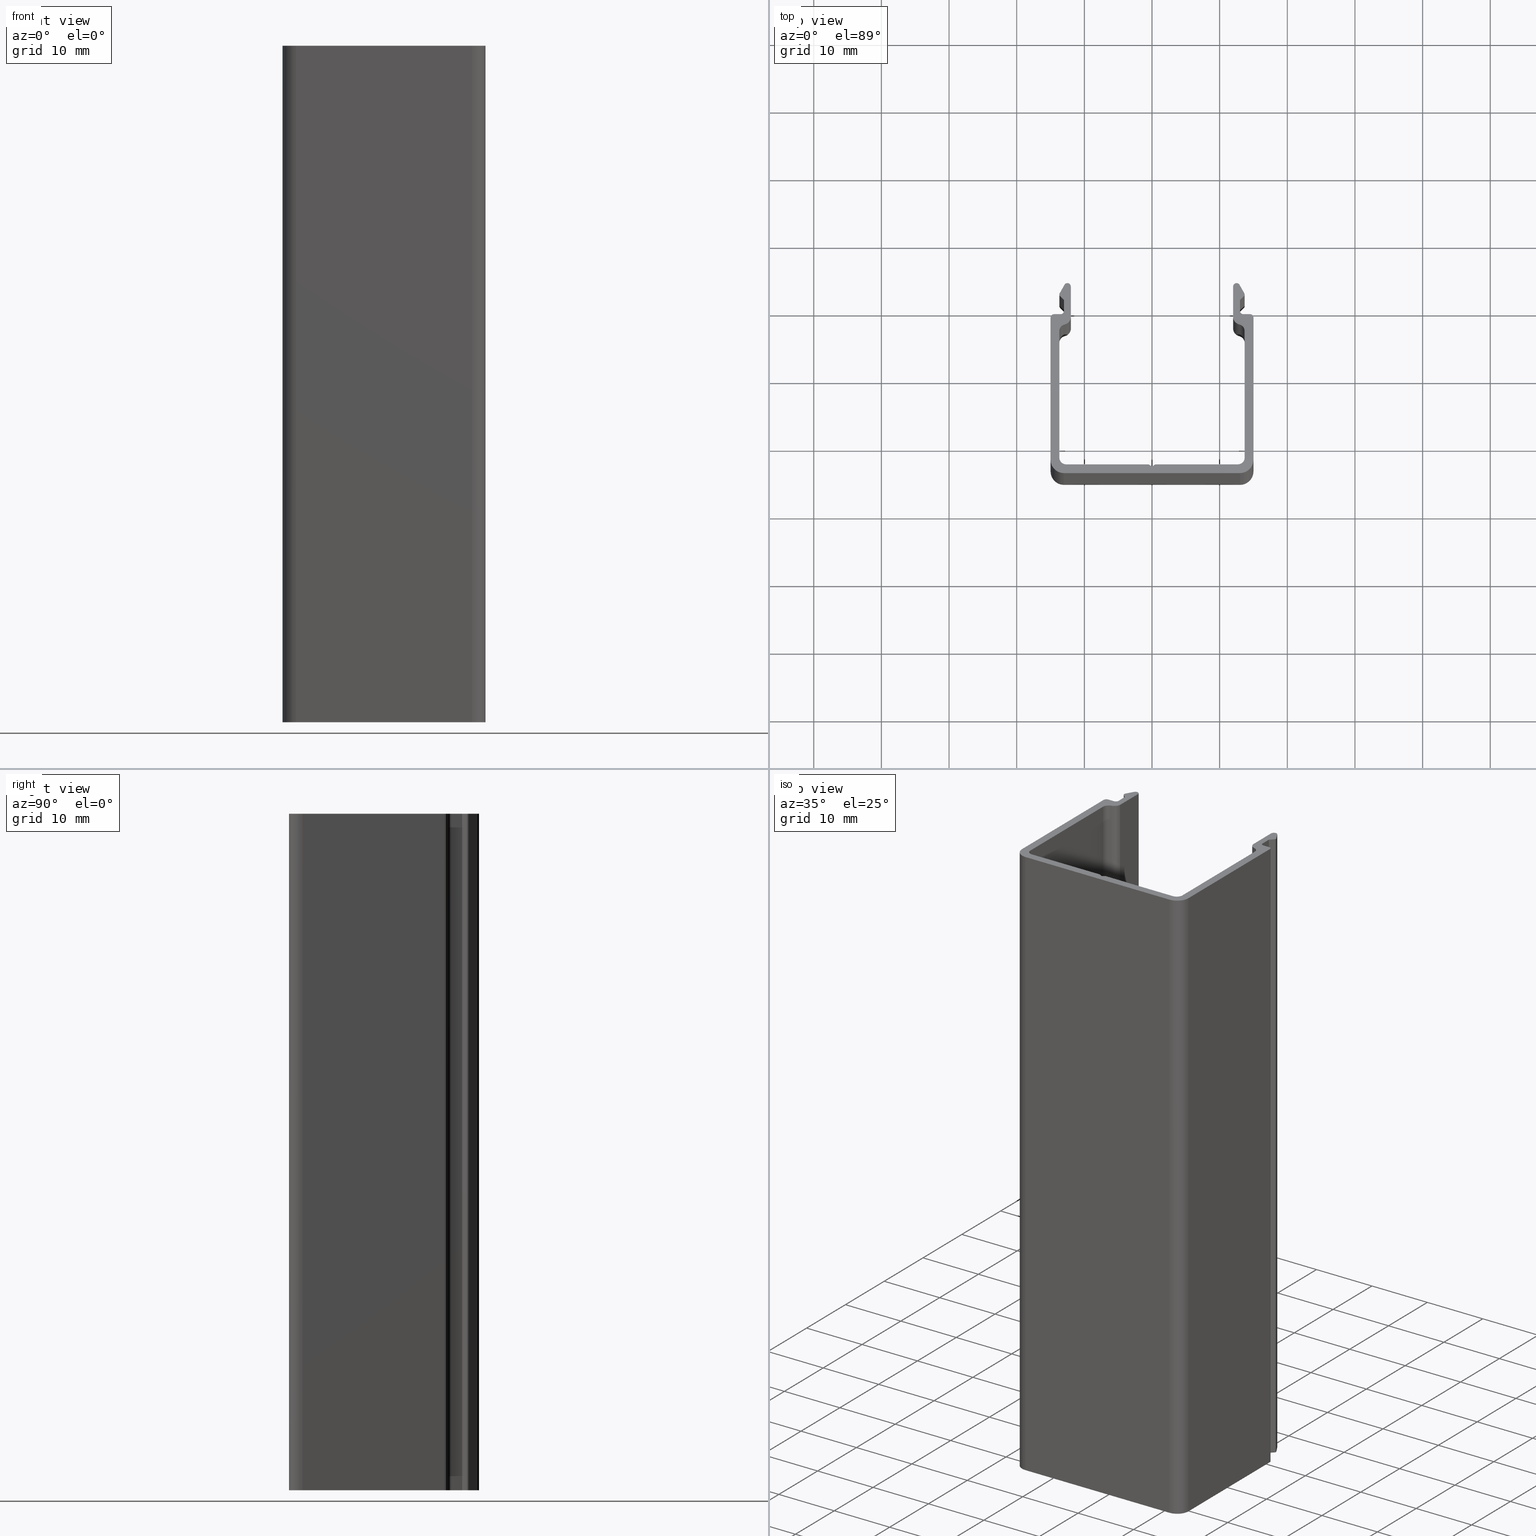
[diagram: canonical four-view strip — front | top / right | iso, engineering-drawing reading convention]
A machine part, canonical four-view strip (front | top / right | iso — engineering-drawing reading convention). The complete STEP part file that produces these views, byte-faithful:
ISO-10303-21;
HEADER;
/* Generated by software containing ST-Developer
 * from STEP Tools, Inc. (www.steptools.com) 
 */

FILE_DESCRIPTION(
/* description */ (''),
/* implementation_level */ '2;1');

FILE_NAME(
/* name */ 
'Q:\\Catalogo\\1_Profili Dierre\\Per Download Web\\Complementari\\BPRC
A0000001.stp',
/* time_stamp */ '2017-07-14T09:56:03+02:00',
/* author */ ('fzagni'),
/* organization */ (''),
/* preprocessor_version */ 'ST-DEVELOPER v16.1',
/* originating_system */ 'Autodesk Inventor 2016',
/* authorisation */ '');

FILE_SCHEMA (('AUTOMOTIVE_DESIGN { 1 0 10303 214 3 1 1 }'));
ENDSEC;

DATA;
#10=MECHANICAL_DESIGN_GEOMETRIC_PRESENTATION_REPRESENTATION('',(#13),#1226);
#11=SHAPE_REPRESENTATION_RELATIONSHIP('SRR','None',#1235,#12);
#12=ADVANCED_BREP_SHAPE_REPRESENTATION('',(#14),#1225);
#13=STYLED_ITEM('',(#1244),#14);
#14=MANIFOLD_SOLID_BREP('Solido1',#726);
#15=CIRCLE('',#730,2.);
#16=CIRCLE('',#731,2.);
#17=CIRCLE('',#734,0.500103581741702);
#18=CIRCLE('',#735,0.500103581741702);
#19=CIRCLE('',#738,0.500103581741702);
#20=CIRCLE('',#739,0.500103581741702);
#21=CIRCLE('',#743,0.300000000000276);
#22=CIRCLE('',#744,0.300000000000276);
#23=CIRCLE('',#747,0.500103581741702);
#24=CIRCLE('',#748,0.500103581741702);
#25=CIRCLE('',#751,1.20293120037158);
#26=CIRCLE('',#752,1.20293120037158);
#27=CIRCLE('',#754,1.00000000000018);
#28=CIRCLE('',#755,1.00000000000018);
#29=CIRCLE('',#758,1.00000000000018);
#30=CIRCLE('',#759,1.00000000000018);
#31=CIRCLE('',#763,2.);
#32=CIRCLE('',#764,2.);
#33=CIRCLE('',#767,0.500103581741702);
#34=CIRCLE('',#768,0.500103581741702);
#35=CIRCLE('',#771,0.500103581741702);
#36=CIRCLE('',#772,0.500103581741702);
#37=CIRCLE('',#776,0.300000000000276);
#38=CIRCLE('',#777,0.300000000000276);
#39=CIRCLE('',#780,0.500103581741702);
#40=CIRCLE('',#781,0.500103581741702);
#41=CIRCLE('',#784,1.20293120037158);
#42=CIRCLE('',#785,1.20293120037158);
#43=CIRCLE('',#787,1.00000000000018);
#44=CIRCLE('',#788,1.00000000000018);
#45=CIRCLE('',#791,1.00000000000018);
#46=CIRCLE('',#792,1.00000000000018);
#47=CYLINDRICAL_SURFACE('',#729,2.);
#48=CYLINDRICAL_SURFACE('',#733,0.500103581741702);
#49=CYLINDRICAL_SURFACE('',#737,0.500103581741702);
#50=CYLINDRICAL_SURFACE('',#742,0.300000000000276);
#51=CYLINDRICAL_SURFACE('',#746,0.500103581741702);
#52=CYLINDRICAL_SURFACE('',#750,1.20293120037158);
#53=CYLINDRICAL_SURFACE('',#753,1.00000000000018);
#54=CYLINDRICAL_SURFACE('',#757,1.00000000000018);
#55=CYLINDRICAL_SURFACE('',#762,2.);
#56=CYLINDRICAL_SURFACE('',#766,0.500103581741702);
#57=CYLINDRICAL_SURFACE('',#770,0.500103581741702);
#58=CYLINDRICAL_SURFACE('',#775,0.300000000000276);
#59=CYLINDRICAL_SURFACE('',#779,0.500103581741702);
#60=CYLINDRICAL_SURFACE('',#783,1.20293120037158);
#61=CYLINDRICAL_SURFACE('',#786,1.00000000000018);
#62=CYLINDRICAL_SURFACE('',#790,1.00000000000018);
#63=FACE_OUTER_BOUND('',#100,.T.);
#64=FACE_OUTER_BOUND('',#101,.T.);
#65=FACE_OUTER_BOUND('',#102,.T.);
#66=FACE_OUTER_BOUND('',#103,.T.);
#67=FACE_OUTER_BOUND('',#104,.T.);
#68=FACE_OUTER_BOUND('',#105,.T.);
#69=FACE_OUTER_BOUND('',#106,.T.);
#70=FACE_OUTER_BOUND('',#107,.T.);
#71=FACE_OUTER_BOUND('',#108,.T.);
#72=FACE_OUTER_BOUND('',#109,.T.);
#73=FACE_OUTER_BOUND('',#110,.T.);
#74=FACE_OUTER_BOUND('',#111,.T.);
#75=FACE_OUTER_BOUND('',#112,.T.);
#76=FACE_OUTER_BOUND('',#113,.T.);
#77=FACE_OUTER_BOUND('',#114,.T.);
#78=FACE_OUTER_BOUND('',#115,.T.);
#79=FACE_OUTER_BOUND('',#116,.T.);
#80=FACE_OUTER_BOUND('',#117,.T.);
#81=FACE_OUTER_BOUND('',#118,.T.);
#82=FACE_OUTER_BOUND('',#119,.T.);
#83=FACE_OUTER_BOUND('',#120,.T.);
#84=FACE_OUTER_BOUND('',#121,.T.);
#85=FACE_OUTER_BOUND('',#122,.T.);
#86=FACE_OUTER_BOUND('',#123,.T.);
#87=FACE_OUTER_BOUND('',#124,.T.);
#88=FACE_OUTER_BOUND('',#125,.T.);
#89=FACE_OUTER_BOUND('',#126,.T.);
#90=FACE_OUTER_BOUND('',#127,.T.);
#91=FACE_OUTER_BOUND('',#128,.T.);
#92=FACE_OUTER_BOUND('',#129,.T.);
#93=FACE_OUTER_BOUND('',#130,.T.);
#94=FACE_OUTER_BOUND('',#131,.T.);
#95=FACE_OUTER_BOUND('',#132,.T.);
#96=FACE_OUTER_BOUND('',#133,.T.);
#97=FACE_OUTER_BOUND('',#134,.T.);
#98=FACE_OUTER_BOUND('',#135,.T.);
#99=FACE_OUTER_BOUND('',#136,.T.);
#100=EDGE_LOOP('',(#458,#459,#460,#461));
#101=EDGE_LOOP('',(#462,#463,#464,#465));
#102=EDGE_LOOP('',(#466,#467,#468,#469));
#103=EDGE_LOOP('',(#470,#471,#472,#473));
#104=EDGE_LOOP('',(#474,#475,#476,#477));
#105=EDGE_LOOP('',(#478,#479,#480,#481));
#106=EDGE_LOOP('',(#482,#483,#484,#485));
#107=EDGE_LOOP('',(#486,#487,#488,#489));
#108=EDGE_LOOP('',(#490,#491,#492,#493));
#109=EDGE_LOOP('',(#494,#495,#496,#497));
#110=EDGE_LOOP('',(#498,#499,#500,#501));
#111=EDGE_LOOP('',(#502,#503,#504,#505));
#112=EDGE_LOOP('',(#506,#507,#508,#509));
#113=EDGE_LOOP('',(#510,#511,#512,#513));
#114=EDGE_LOOP('',(#514,#515,#516,#517));
#115=EDGE_LOOP('',(#518,#519,#520,#521));
#116=EDGE_LOOP('',(#522,#523,#524,#525));
#117=EDGE_LOOP('',(#526,#527,#528,#529));
#118=EDGE_LOOP('',(#530,#531,#532,#533));
#119=EDGE_LOOP('',(#534,#535,#536,#537));
#120=EDGE_LOOP('',(#538,#539,#540,#541));
#121=EDGE_LOOP('',(#542,#543,#544,#545));
#122=EDGE_LOOP('',(#546,#547,#548,#549));
#123=EDGE_LOOP('',(#550,#551,#552,#553));
#124=EDGE_LOOP('',(#554,#555,#556,#557));
#125=EDGE_LOOP('',(#558,#559,#560,#561));
#126=EDGE_LOOP('',(#562,#563,#564,#565));
#127=EDGE_LOOP('',(#566,#567,#568,#569));
#128=EDGE_LOOP('',(#570,#571,#572,#573));
#129=EDGE_LOOP('',(#574,#575,#576,#577));
#130=EDGE_LOOP('',(#578,#579,#580,#581));
#131=EDGE_LOOP('',(#582,#583,#584,#585));
#132=EDGE_LOOP('',(#586,#587,#588,#589));
#133=EDGE_LOOP('',(#590,#591,#592,#593));
#134=EDGE_LOOP('',(#594,#595,#596,#597));
#135=EDGE_LOOP('',(#598,#599,#600,#601,#602,#603,#604,#605,#606,#607,#608,
#609,#610,#611,#612,#613,#614,#615,#616,#617,#618,#619,#620,#621,#622,#623,
#624,#625,#626,#627,#628,#629,#630,#631,#632));
#136=EDGE_LOOP('',(#633,#634,#635,#636,#637,#638,#639,#640,#641,#642,#643,
#644,#645,#646,#647,#648,#649,#650,#651,#652,#653,#654,#655,#656,#657,#658,
#659,#660,#661,#662,#663,#664,#665,#666,#667));
#137=LINE('',#1014,#210);
#138=LINE('',#1016,#211);
#139=LINE('',#1018,#212);
#140=LINE('',#1019,#213);
#141=LINE('',#1025,#214);
#142=LINE('',#1028,#215);
#143=LINE('',#1030,#216);
#144=LINE('',#1031,#217);
#145=LINE('',#1037,#218);
#146=LINE('',#1040,#219);
#147=LINE('',#1042,#220);
#148=LINE('',#1043,#221);
#149=LINE('',#1049,#222);
#150=LINE('',#1052,#223);
#151=LINE('',#1054,#224);
#152=LINE('',#1055,#225);
#153=LINE('',#1058,#226);
#154=LINE('',#1060,#227);
#155=LINE('',#1061,#228);
#156=LINE('',#1067,#229);
#157=LINE('',#1070,#230);
#158=LINE('',#1072,#231);
#159=LINE('',#1073,#232);
#160=LINE('',#1079,#233);
#161=LINE('',#1082,#234);
#162=LINE('',#1084,#235);
#163=LINE('',#1085,#236);
#164=LINE('',#1091,#237);
#165=LINE('',#1097,#238);
#166=LINE('',#1100,#239);
#167=LINE('',#1102,#240);
#168=LINE('',#1103,#241);
#169=LINE('',#1109,#242);
#170=LINE('',#1112,#243);
#171=LINE('',#1114,#244);
#172=LINE('',#1115,#245);
#173=LINE('',#1118,#246);
#174=LINE('',#1120,#247);
#175=LINE('',#1121,#248);
#176=LINE('',#1126,#249);
#177=LINE('',#1130,#250);
#178=LINE('',#1132,#251);
#179=LINE('',#1133,#252);
#180=LINE('',#1138,#253);
#181=LINE('',#1142,#254);
#182=LINE('',#1144,#255);
#183=LINE('',#1145,#256);
#184=LINE('',#1150,#257);
#185=LINE('',#1154,#258);
#186=LINE('',#1156,#259);
#187=LINE('',#1157,#260);
#188=LINE('',#1160,#261);
#189=LINE('',#1162,#262);
#190=LINE('',#1163,#263);
#191=LINE('',#1168,#264);
#192=LINE('',#1172,#265);
#193=LINE('',#1174,#266);
#194=LINE('',#1175,#267);
#195=LINE('',#1180,#268);
#196=LINE('',#1184,#269);
#197=LINE('',#1186,#270);
#198=LINE('',#1187,#271);
#199=LINE('',#1192,#272);
#200=LINE('',#1198,#273);
#201=LINE('',#1202,#274);
#202=LINE('',#1204,#275);
#203=LINE('',#1205,#276);
#204=LINE('',#1210,#277);
#205=LINE('',#1214,#278);
#206=LINE('',#1216,#279);
#207=LINE('',#1217,#280);
#208=LINE('',#1219,#281);
#209=LINE('',#1220,#282);
#210=VECTOR('',#801,26.0002071634832);
#211=VECTOR('',#802,100.);
#212=VECTOR('',#803,26.0002071634832);
#213=VECTOR('',#804,100.);
#214=VECTOR('',#811,100.);
#215=VECTOR('',#814,21.0000000000002);
#216=VECTOR('',#815,21.0000000000002);
#217=VECTOR('',#816,100.);
#218=VECTOR('',#823,100.);
#219=VECTOR('',#826,1.00000000000017);
#220=VECTOR('',#827,1.00000000000017);
#221=VECTOR('',#828,100.);
#222=VECTOR('',#835,100.);
#223=VECTOR('',#838,1.59426406871193);
#224=VECTOR('',#839,1.59426406871193);
#225=VECTOR('',#840,100.);
#226=VECTOR('',#843,0.865392451541066);
#227=VECTOR('',#844,0.865392451541066);
#228=VECTOR('',#845,100.);
#229=VECTOR('',#852,100.);
#230=VECTOR('',#855,1.47109128332778);
#231=VECTOR('',#856,1.47109128332778);
#232=VECTOR('',#857,100.);
#233=VECTOR('',#864,100.);
#234=VECTOR('',#867,4.66350832689555);
#235=VECTOR('',#868,4.66350832689555);
#236=VECTOR('',#869,100.);
#237=VECTOR('',#876,100.);
#238=VECTOR('',#883,100.);
#239=VECTOR('',#886,18.6990981728159);
#240=VECTOR('',#887,18.6990981728159);
#241=VECTOR('',#888,100.);
#242=VECTOR('',#895,100.);
#243=VECTOR('',#898,12.1798805522346);
#244=VECTOR('',#899,12.1798805522346);
#245=VECTOR('',#900,100.);
#246=VECTOR('',#903,0.600000000000112);
#247=VECTOR('',#904,0.600000000000112);
#248=VECTOR('',#905,100.);
#249=VECTOR('',#910,100.);
#250=VECTOR('',#915,21.0000000000002);
#251=VECTOR('',#916,100.);
#252=VECTOR('',#917,21.0000000000002);
#253=VECTOR('',#922,100.);
#254=VECTOR('',#927,0.99968925477544);
#255=VECTOR('',#928,100.);
#256=VECTOR('',#929,0.99968925477544);
#257=VECTOR('',#934,100.);
#258=VECTOR('',#939,1.5942640687104);
#259=VECTOR('',#940,100.);
#260=VECTOR('',#941,1.5942640687104);
#261=VECTOR('',#944,0.8651188574061);
#262=VECTOR('',#945,100.);
#263=VECTOR('',#946,0.8651188574061);
#264=VECTOR('',#951,100.);
#265=VECTOR('',#956,1.47181742859899);
#266=VECTOR('',#957,100.);
#267=VECTOR('',#958,1.47181742859899);
#268=VECTOR('',#963,100.);
#269=VECTOR('',#968,4.66350832689616);
#270=VECTOR('',#969,100.);
#271=VECTOR('',#970,4.66350832689616);
#272=VECTOR('',#975,100.);
#273=VECTOR('',#982,100.);
#274=VECTOR('',#987,18.700000127112);
#275=VECTOR('',#988,100.);
#276=VECTOR('',#989,18.700000127112);
#277=VECTOR('',#994,100.);
#278=VECTOR('',#999,12.1803847577287);
#279=VECTOR('',#1000,100.);
#280=VECTOR('',#1001,12.1803847577287);
#281=VECTOR('',#1004,0.600000000000496);
#282=VECTOR('',#1005,0.600000000000496);
#283=VERTEX_POINT('',#1012);
#284=VERTEX_POINT('',#1013);
#285=VERTEX_POINT('',#1015);
#286=VERTEX_POINT('',#1017);
#287=VERTEX_POINT('',#1021);
#288=VERTEX_POINT('',#1023);
#289=VERTEX_POINT('',#1027);
#290=VERTEX_POINT('',#1029);
#291=VERTEX_POINT('',#1033);
#292=VERTEX_POINT('',#1035);
#293=VERTEX_POINT('',#1039);
#294=VERTEX_POINT('',#1041);
#295=VERTEX_POINT('',#1045);
#296=VERTEX_POINT('',#1047);
#297=VERTEX_POINT('',#1051);
#298=VERTEX_POINT('',#1053);
#299=VERTEX_POINT('',#1057);
#300=VERTEX_POINT('',#1059);
#301=VERTEX_POINT('',#1063);
#302=VERTEX_POINT('',#1065);
#303=VERTEX_POINT('',#1069);
#304=VERTEX_POINT('',#1071);
#305=VERTEX_POINT('',#1075);
#306=VERTEX_POINT('',#1077);
#307=VERTEX_POINT('',#1081);
#308=VERTEX_POINT('',#1083);
#309=VERTEX_POINT('',#1087);
#310=VERTEX_POINT('',#1089);
#311=VERTEX_POINT('',#1093);
#312=VERTEX_POINT('',#1095);
#313=VERTEX_POINT('',#1099);
#314=VERTEX_POINT('',#1101);
#315=VERTEX_POINT('',#1105);
#316=VERTEX_POINT('',#1107);
#317=VERTEX_POINT('',#1111);
#318=VERTEX_POINT('',#1113);
#319=VERTEX_POINT('',#1117);
#320=VERTEX_POINT('',#1119);
#321=VERTEX_POINT('',#1123);
#322=VERTEX_POINT('',#1125);
#323=VERTEX_POINT('',#1129);
#324=VERTEX_POINT('',#1131);
#325=VERTEX_POINT('',#1135);
#326=VERTEX_POINT('',#1137);
#327=VERTEX_POINT('',#1141);
#328=VERTEX_POINT('',#1143);
#329=VERTEX_POINT('',#1147);
#330=VERTEX_POINT('',#1149);
#331=VERTEX_POINT('',#1153);
#332=VERTEX_POINT('',#1155);
#333=VERTEX_POINT('',#1159);
#334=VERTEX_POINT('',#1161);
#335=VERTEX_POINT('',#1165);
#336=VERTEX_POINT('',#1167);
#337=VERTEX_POINT('',#1171);
#338=VERTEX_POINT('',#1173);
#339=VERTEX_POINT('',#1177);
#340=VERTEX_POINT('',#1179);
#341=VERTEX_POINT('',#1183);
#342=VERTEX_POINT('',#1185);
#343=VERTEX_POINT('',#1189);
#344=VERTEX_POINT('',#1191);
#345=VERTEX_POINT('',#1195);
#346=VERTEX_POINT('',#1197);
#347=VERTEX_POINT('',#1201);
#348=VERTEX_POINT('',#1203);
#349=VERTEX_POINT('',#1207);
#350=VERTEX_POINT('',#1209);
#351=VERTEX_POINT('',#1213);
#352=VERTEX_POINT('',#1215);
#353=EDGE_CURVE('',#283,#284,#137,.T.);
#354=EDGE_CURVE('',#283,#285,#138,.T.);
#355=EDGE_CURVE('',#286,#285,#139,.T.);
#356=EDGE_CURVE('',#284,#286,#140,.T.);
#357=EDGE_CURVE('',#284,#287,#15,.T.);
#358=EDGE_CURVE('',#288,#286,#16,.T.);
#359=EDGE_CURVE('',#287,#288,#141,.T.);
#360=EDGE_CURVE('',#287,#289,#142,.T.);
#361=EDGE_CURVE('',#290,#288,#143,.T.);
#362=EDGE_CURVE('',#289,#290,#144,.T.);
#363=EDGE_CURVE('',#289,#291,#17,.T.);
#364=EDGE_CURVE('',#292,#290,#18,.T.);
#365=EDGE_CURVE('',#291,#292,#145,.T.);
#366=EDGE_CURVE('',#291,#293,#146,.T.);
#367=EDGE_CURVE('',#294,#292,#147,.T.);
#368=EDGE_CURVE('',#293,#294,#148,.T.);
#369=EDGE_CURVE('',#293,#295,#19,.T.);
#370=EDGE_CURVE('',#296,#294,#20,.T.);
#371=EDGE_CURVE('',#295,#296,#149,.T.);
#372=EDGE_CURVE('',#295,#297,#150,.T.);
#373=EDGE_CURVE('',#298,#296,#151,.T.);
#374=EDGE_CURVE('',#297,#298,#152,.T.);
#375=EDGE_CURVE('',#297,#299,#153,.T.);
#376=EDGE_CURVE('',#300,#298,#154,.T.);
#377=EDGE_CURVE('',#299,#300,#155,.T.);
#378=EDGE_CURVE('',#299,#301,#21,.T.);
#379=EDGE_CURVE('',#302,#300,#22,.T.);
#380=EDGE_CURVE('',#301,#302,#156,.T.);
#381=EDGE_CURVE('',#301,#303,#157,.T.);
#382=EDGE_CURVE('',#304,#302,#158,.T.);
#383=EDGE_CURVE('',#303,#304,#159,.T.);
#384=EDGE_CURVE('',#303,#305,#23,.T.);
#385=EDGE_CURVE('',#306,#304,#24,.T.);
#386=EDGE_CURVE('',#305,#306,#160,.T.);
#387=EDGE_CURVE('',#305,#307,#161,.T.);
#388=EDGE_CURVE('',#308,#306,#162,.T.);
#389=EDGE_CURVE('',#307,#308,#163,.T.);
#390=EDGE_CURVE('',#307,#309,#25,.T.);
#391=EDGE_CURVE('',#310,#308,#26,.T.);
#392=EDGE_CURVE('',#309,#310,#164,.T.);
#393=EDGE_CURVE('',#309,#311,#27,.T.);
#394=EDGE_CURVE('',#312,#310,#28,.T.);
#395=EDGE_CURVE('',#311,#312,#165,.T.);
#396=EDGE_CURVE('',#311,#313,#166,.T.);
#397=EDGE_CURVE('',#314,#312,#167,.T.);
#398=EDGE_CURVE('',#313,#314,#168,.T.);
#399=EDGE_CURVE('',#313,#315,#29,.T.);
#400=EDGE_CURVE('',#316,#314,#30,.T.);
#401=EDGE_CURVE('',#315,#316,#169,.T.);
#402=EDGE_CURVE('',#315,#317,#170,.T.);
#403=EDGE_CURVE('',#318,#316,#171,.T.);
#404=EDGE_CURVE('',#317,#318,#172,.T.);
#405=EDGE_CURVE('',#317,#319,#173,.T.);
#406=EDGE_CURVE('',#320,#318,#174,.T.);
#407=EDGE_CURVE('',#319,#320,#175,.T.);
#408=EDGE_CURVE('',#321,#283,#31,.T.);
#409=EDGE_CURVE('',#321,#322,#176,.T.);
#410=EDGE_CURVE('',#285,#322,#32,.T.);
#411=EDGE_CURVE('',#323,#321,#177,.T.);
#412=EDGE_CURVE('',#323,#324,#178,.T.);
#413=EDGE_CURVE('',#322,#324,#179,.T.);
#414=EDGE_CURVE('',#325,#323,#33,.T.);
#415=EDGE_CURVE('',#325,#326,#180,.T.);
#416=EDGE_CURVE('',#324,#326,#34,.T.);
#417=EDGE_CURVE('',#327,#325,#181,.T.);
#418=EDGE_CURVE('',#327,#328,#182,.T.);
#419=EDGE_CURVE('',#326,#328,#183,.T.);
#420=EDGE_CURVE('',#329,#327,#35,.T.);
#421=EDGE_CURVE('',#329,#330,#184,.T.);
#422=EDGE_CURVE('',#328,#330,#36,.T.);
#423=EDGE_CURVE('',#331,#329,#185,.T.);
#424=EDGE_CURVE('',#331,#332,#186,.T.);
#425=EDGE_CURVE('',#330,#332,#187,.T.);
#426=EDGE_CURVE('',#333,#331,#188,.T.);
#427=EDGE_CURVE('',#333,#334,#189,.T.);
#428=EDGE_CURVE('',#332,#334,#190,.T.);
#429=EDGE_CURVE('',#335,#333,#37,.T.);
#430=EDGE_CURVE('',#335,#336,#191,.T.);
#431=EDGE_CURVE('',#334,#336,#38,.T.);
#432=EDGE_CURVE('',#337,#335,#192,.T.);
#433=EDGE_CURVE('',#337,#338,#193,.T.);
#434=EDGE_CURVE('',#336,#338,#194,.T.);
#435=EDGE_CURVE('',#339,#337,#39,.T.);
#436=EDGE_CURVE('',#339,#340,#195,.T.);
#437=EDGE_CURVE('',#338,#340,#40,.T.);
#438=EDGE_CURVE('',#341,#339,#196,.T.);
#439=EDGE_CURVE('',#341,#342,#197,.T.);
#440=EDGE_CURVE('',#340,#342,#198,.T.);
#441=EDGE_CURVE('',#343,#341,#41,.T.);
#442=EDGE_CURVE('',#343,#344,#199,.T.);
#443=EDGE_CURVE('',#342,#344,#42,.T.);
#444=EDGE_CURVE('',#345,#343,#43,.T.);
#445=EDGE_CURVE('',#345,#346,#200,.T.);
#446=EDGE_CURVE('',#344,#346,#44,.T.);
#447=EDGE_CURVE('',#347,#345,#201,.T.);
#448=EDGE_CURVE('',#347,#348,#202,.T.);
#449=EDGE_CURVE('',#346,#348,#203,.T.);
#450=EDGE_CURVE('',#349,#347,#45,.T.);
#451=EDGE_CURVE('',#349,#350,#204,.T.);
#452=EDGE_CURVE('',#348,#350,#46,.T.);
#453=EDGE_CURVE('',#351,#349,#205,.T.);
#454=EDGE_CURVE('',#352,#351,#206,.T.);
#455=EDGE_CURVE('',#350,#352,#207,.T.);
#456=EDGE_CURVE('',#319,#351,#208,.T.);
#457=EDGE_CURVE('',#352,#320,#209,.T.);
#458=ORIENTED_EDGE('',*,*,#353,.F.);
#459=ORIENTED_EDGE('',*,*,#354,.T.);
#460=ORIENTED_EDGE('',*,*,#355,.F.);
#461=ORIENTED_EDGE('',*,*,#356,.F.);
#462=ORIENTED_EDGE('',*,*,#357,.F.);
#463=ORIENTED_EDGE('',*,*,#356,.T.);
#464=ORIENTED_EDGE('',*,*,#358,.F.);
#465=ORIENTED_EDGE('',*,*,#359,.F.);
#466=ORIENTED_EDGE('',*,*,#360,.F.);
#467=ORIENTED_EDGE('',*,*,#359,.T.);
#468=ORIENTED_EDGE('',*,*,#361,.F.);
#469=ORIENTED_EDGE('',*,*,#362,.F.);
#470=ORIENTED_EDGE('',*,*,#363,.F.);
#471=ORIENTED_EDGE('',*,*,#362,.T.);
#472=ORIENTED_EDGE('',*,*,#364,.F.);
#473=ORIENTED_EDGE('',*,*,#365,.F.);
#474=ORIENTED_EDGE('',*,*,#366,.F.);
#475=ORIENTED_EDGE('',*,*,#365,.T.);
#476=ORIENTED_EDGE('',*,*,#367,.F.);
#477=ORIENTED_EDGE('',*,*,#368,.F.);
#478=ORIENTED_EDGE('',*,*,#369,.F.);
#479=ORIENTED_EDGE('',*,*,#368,.T.);
#480=ORIENTED_EDGE('',*,*,#370,.F.);
#481=ORIENTED_EDGE('',*,*,#371,.F.);
#482=ORIENTED_EDGE('',*,*,#372,.F.);
#483=ORIENTED_EDGE('',*,*,#371,.T.);
#484=ORIENTED_EDGE('',*,*,#373,.F.);
#485=ORIENTED_EDGE('',*,*,#374,.F.);
#486=ORIENTED_EDGE('',*,*,#375,.F.);
#487=ORIENTED_EDGE('',*,*,#374,.T.);
#488=ORIENTED_EDGE('',*,*,#376,.F.);
#489=ORIENTED_EDGE('',*,*,#377,.F.);
#490=ORIENTED_EDGE('',*,*,#378,.F.);
#491=ORIENTED_EDGE('',*,*,#377,.T.);
#492=ORIENTED_EDGE('',*,*,#379,.F.);
#493=ORIENTED_EDGE('',*,*,#380,.F.);
#494=ORIENTED_EDGE('',*,*,#381,.F.);
#495=ORIENTED_EDGE('',*,*,#380,.T.);
#496=ORIENTED_EDGE('',*,*,#382,.F.);
#497=ORIENTED_EDGE('',*,*,#383,.F.);
#498=ORIENTED_EDGE('',*,*,#384,.F.);
#499=ORIENTED_EDGE('',*,*,#383,.T.);
#500=ORIENTED_EDGE('',*,*,#385,.F.);
#501=ORIENTED_EDGE('',*,*,#386,.F.);
#502=ORIENTED_EDGE('',*,*,#387,.F.);
#503=ORIENTED_EDGE('',*,*,#386,.T.);
#504=ORIENTED_EDGE('',*,*,#388,.F.);
#505=ORIENTED_EDGE('',*,*,#389,.F.);
#506=ORIENTED_EDGE('',*,*,#390,.F.);
#507=ORIENTED_EDGE('',*,*,#389,.T.);
#508=ORIENTED_EDGE('',*,*,#391,.F.);
#509=ORIENTED_EDGE('',*,*,#392,.F.);
#510=ORIENTED_EDGE('',*,*,#393,.F.);
#511=ORIENTED_EDGE('',*,*,#392,.T.);
#512=ORIENTED_EDGE('',*,*,#394,.F.);
#513=ORIENTED_EDGE('',*,*,#395,.F.);
#514=ORIENTED_EDGE('',*,*,#396,.F.);
#515=ORIENTED_EDGE('',*,*,#395,.T.);
#516=ORIENTED_EDGE('',*,*,#397,.F.);
#517=ORIENTED_EDGE('',*,*,#398,.F.);
#518=ORIENTED_EDGE('',*,*,#399,.F.);
#519=ORIENTED_EDGE('',*,*,#398,.T.);
#520=ORIENTED_EDGE('',*,*,#400,.F.);
#521=ORIENTED_EDGE('',*,*,#401,.F.);
#522=ORIENTED_EDGE('',*,*,#402,.F.);
#523=ORIENTED_EDGE('',*,*,#401,.T.);
#524=ORIENTED_EDGE('',*,*,#403,.F.);
#525=ORIENTED_EDGE('',*,*,#404,.F.);
#526=ORIENTED_EDGE('',*,*,#405,.F.);
#527=ORIENTED_EDGE('',*,*,#404,.T.);
#528=ORIENTED_EDGE('',*,*,#406,.F.);
#529=ORIENTED_EDGE('',*,*,#407,.F.);
#530=ORIENTED_EDGE('',*,*,#408,.F.);
#531=ORIENTED_EDGE('',*,*,#409,.T.);
#532=ORIENTED_EDGE('',*,*,#410,.F.);
#533=ORIENTED_EDGE('',*,*,#354,.F.);
#534=ORIENTED_EDGE('',*,*,#411,.F.);
#535=ORIENTED_EDGE('',*,*,#412,.T.);
#536=ORIENTED_EDGE('',*,*,#413,.F.);
#537=ORIENTED_EDGE('',*,*,#409,.F.);
#538=ORIENTED_EDGE('',*,*,#414,.F.);
#539=ORIENTED_EDGE('',*,*,#415,.T.);
#540=ORIENTED_EDGE('',*,*,#416,.F.);
#541=ORIENTED_EDGE('',*,*,#412,.F.);
#542=ORIENTED_EDGE('',*,*,#417,.F.);
#543=ORIENTED_EDGE('',*,*,#418,.T.);
#544=ORIENTED_EDGE('',*,*,#419,.F.);
#545=ORIENTED_EDGE('',*,*,#415,.F.);
#546=ORIENTED_EDGE('',*,*,#420,.F.);
#547=ORIENTED_EDGE('',*,*,#421,.T.);
#548=ORIENTED_EDGE('',*,*,#422,.F.);
#549=ORIENTED_EDGE('',*,*,#418,.F.);
#550=ORIENTED_EDGE('',*,*,#423,.F.);
#551=ORIENTED_EDGE('',*,*,#424,.T.);
#552=ORIENTED_EDGE('',*,*,#425,.F.);
#553=ORIENTED_EDGE('',*,*,#421,.F.);
#554=ORIENTED_EDGE('',*,*,#426,.F.);
#555=ORIENTED_EDGE('',*,*,#427,.T.);
#556=ORIENTED_EDGE('',*,*,#428,.F.);
#557=ORIENTED_EDGE('',*,*,#424,.F.);
#558=ORIENTED_EDGE('',*,*,#429,.F.);
#559=ORIENTED_EDGE('',*,*,#430,.T.);
#560=ORIENTED_EDGE('',*,*,#431,.F.);
#561=ORIENTED_EDGE('',*,*,#427,.F.);
#562=ORIENTED_EDGE('',*,*,#432,.F.);
#563=ORIENTED_EDGE('',*,*,#433,.T.);
#564=ORIENTED_EDGE('',*,*,#434,.F.);
#565=ORIENTED_EDGE('',*,*,#430,.F.);
#566=ORIENTED_EDGE('',*,*,#435,.F.);
#567=ORIENTED_EDGE('',*,*,#436,.T.);
#568=ORIENTED_EDGE('',*,*,#437,.F.);
#569=ORIENTED_EDGE('',*,*,#433,.F.);
#570=ORIENTED_EDGE('',*,*,#438,.F.);
#571=ORIENTED_EDGE('',*,*,#439,.T.);
#572=ORIENTED_EDGE('',*,*,#440,.F.);
#573=ORIENTED_EDGE('',*,*,#436,.F.);
#574=ORIENTED_EDGE('',*,*,#441,.F.);
#575=ORIENTED_EDGE('',*,*,#442,.T.);
#576=ORIENTED_EDGE('',*,*,#443,.F.);
#577=ORIENTED_EDGE('',*,*,#439,.F.);
#578=ORIENTED_EDGE('',*,*,#444,.F.);
#579=ORIENTED_EDGE('',*,*,#445,.T.);
#580=ORIENTED_EDGE('',*,*,#446,.F.);
#581=ORIENTED_EDGE('',*,*,#442,.F.);
#582=ORIENTED_EDGE('',*,*,#447,.F.);
#583=ORIENTED_EDGE('',*,*,#448,.T.);
#584=ORIENTED_EDGE('',*,*,#449,.F.);
#585=ORIENTED_EDGE('',*,*,#445,.F.);
#586=ORIENTED_EDGE('',*,*,#450,.F.);
#587=ORIENTED_EDGE('',*,*,#451,.T.);
#588=ORIENTED_EDGE('',*,*,#452,.F.);
#589=ORIENTED_EDGE('',*,*,#448,.F.);
#590=ORIENTED_EDGE('',*,*,#453,.F.);
#591=ORIENTED_EDGE('',*,*,#454,.F.);
#592=ORIENTED_EDGE('',*,*,#455,.F.);
#593=ORIENTED_EDGE('',*,*,#451,.F.);
#594=ORIENTED_EDGE('',*,*,#456,.F.);
#595=ORIENTED_EDGE('',*,*,#407,.T.);
#596=ORIENTED_EDGE('',*,*,#457,.F.);
#597=ORIENTED_EDGE('',*,*,#454,.T.);
#598=ORIENTED_EDGE('',*,*,#355,.T.);
#599=ORIENTED_EDGE('',*,*,#410,.T.);
#600=ORIENTED_EDGE('',*,*,#413,.T.);
#601=ORIENTED_EDGE('',*,*,#416,.T.);
#602=ORIENTED_EDGE('',*,*,#419,.T.);
#603=ORIENTED_EDGE('',*,*,#422,.T.);
#604=ORIENTED_EDGE('',*,*,#425,.T.);
#605=ORIENTED_EDGE('',*,*,#428,.T.);
#606=ORIENTED_EDGE('',*,*,#431,.T.);
#607=ORIENTED_EDGE('',*,*,#434,.T.);
#608=ORIENTED_EDGE('',*,*,#437,.T.);
#609=ORIENTED_EDGE('',*,*,#440,.T.);
#610=ORIENTED_EDGE('',*,*,#443,.T.);
#611=ORIENTED_EDGE('',*,*,#446,.T.);
#612=ORIENTED_EDGE('',*,*,#449,.T.);
#613=ORIENTED_EDGE('',*,*,#452,.T.);
#614=ORIENTED_EDGE('',*,*,#455,.T.);
#615=ORIENTED_EDGE('',*,*,#457,.T.);
#616=ORIENTED_EDGE('',*,*,#406,.T.);
#617=ORIENTED_EDGE('',*,*,#403,.T.);
#618=ORIENTED_EDGE('',*,*,#400,.T.);
#619=ORIENTED_EDGE('',*,*,#397,.T.);
#620=ORIENTED_EDGE('',*,*,#394,.T.);
#621=ORIENTED_EDGE('',*,*,#391,.T.);
#622=ORIENTED_EDGE('',*,*,#388,.T.);
#623=ORIENTED_EDGE('',*,*,#385,.T.);
#624=ORIENTED_EDGE('',*,*,#382,.T.);
#625=ORIENTED_EDGE('',*,*,#379,.T.);
#626=ORIENTED_EDGE('',*,*,#376,.T.);
#627=ORIENTED_EDGE('',*,*,#373,.T.);
#628=ORIENTED_EDGE('',*,*,#370,.T.);
#629=ORIENTED_EDGE('',*,*,#367,.T.);
#630=ORIENTED_EDGE('',*,*,#364,.T.);
#631=ORIENTED_EDGE('',*,*,#361,.T.);
#632=ORIENTED_EDGE('',*,*,#358,.T.);
#633=ORIENTED_EDGE('',*,*,#353,.T.);
#634=ORIENTED_EDGE('',*,*,#357,.T.);
#635=ORIENTED_EDGE('',*,*,#360,.T.);
#636=ORIENTED_EDGE('',*,*,#363,.T.);
#637=ORIENTED_EDGE('',*,*,#366,.T.);
#638=ORIENTED_EDGE('',*,*,#369,.T.);
#639=ORIENTED_EDGE('',*,*,#372,.T.);
#640=ORIENTED_EDGE('',*,*,#375,.T.);
#641=ORIENTED_EDGE('',*,*,#378,.T.);
#642=ORIENTED_EDGE('',*,*,#381,.T.);
#643=ORIENTED_EDGE('',*,*,#384,.T.);
#644=ORIENTED_EDGE('',*,*,#387,.T.);
#645=ORIENTED_EDGE('',*,*,#390,.T.);
#646=ORIENTED_EDGE('',*,*,#393,.T.);
#647=ORIENTED_EDGE('',*,*,#396,.T.);
#648=ORIENTED_EDGE('',*,*,#399,.T.);
#649=ORIENTED_EDGE('',*,*,#402,.T.);
#650=ORIENTED_EDGE('',*,*,#405,.T.);
#651=ORIENTED_EDGE('',*,*,#456,.T.);
#652=ORIENTED_EDGE('',*,*,#453,.T.);
#653=ORIENTED_EDGE('',*,*,#450,.T.);
#654=ORIENTED_EDGE('',*,*,#447,.T.);
#655=ORIENTED_EDGE('',*,*,#444,.T.);
#656=ORIENTED_EDGE('',*,*,#441,.T.);
#657=ORIENTED_EDGE('',*,*,#438,.T.);
#658=ORIENTED_EDGE('',*,*,#435,.T.);
#659=ORIENTED_EDGE('',*,*,#432,.T.);
#660=ORIENTED_EDGE('',*,*,#429,.T.);
#661=ORIENTED_EDGE('',*,*,#426,.T.);
#662=ORIENTED_EDGE('',*,*,#423,.T.);
#663=ORIENTED_EDGE('',*,*,#420,.T.);
#664=ORIENTED_EDGE('',*,*,#417,.T.);
#665=ORIENTED_EDGE('',*,*,#414,.T.);
#666=ORIENTED_EDGE('',*,*,#411,.T.);
#667=ORIENTED_EDGE('',*,*,#408,.T.);
#668=PLANE('',#728);
#669=PLANE('',#732);
#670=PLANE('',#736);
#671=PLANE('',#740);
#672=PLANE('',#741);
#673=PLANE('',#745);
#674=PLANE('',#749);
#675=PLANE('',#756);
#676=PLANE('',#760);
#677=PLANE('',#761);
#678=PLANE('',#765);
#679=PLANE('',#769);
#680=PLANE('',#773);
#681=PLANE('',#774);
#682=PLANE('',#778);
#683=PLANE('',#782);
#684=PLANE('',#789);
#685=PLANE('',#793);
#686=PLANE('',#794);
#687=PLANE('',#795);
#688=PLANE('',#796);
#689=ADVANCED_FACE('',(#63),#668,.T.);
#690=ADVANCED_FACE('',(#64),#47,.T.);
#691=ADVANCED_FACE('',(#65),#669,.T.);
#692=ADVANCED_FACE('',(#66),#48,.T.);
#693=ADVANCED_FACE('',(#67),#670,.T.);
#694=ADVANCED_FACE('',(#68),#49,.F.);
#695=ADVANCED_FACE('',(#69),#671,.T.);
#696=ADVANCED_FACE('',(#70),#672,.T.);
#697=ADVANCED_FACE('',(#71),#50,.T.);
#698=ADVANCED_FACE('',(#72),#673,.T.);
#699=ADVANCED_FACE('',(#73),#51,.T.);
#700=ADVANCED_FACE('',(#74),#674,.T.);
#701=ADVANCED_FACE('',(#75),#52,.T.);
#702=ADVANCED_FACE('',(#76),#53,.F.);
#703=ADVANCED_FACE('',(#77),#675,.T.);
#704=ADVANCED_FACE('',(#78),#54,.F.);
#705=ADVANCED_FACE('',(#79),#676,.T.);
#706=ADVANCED_FACE('',(#80),#677,.T.);
#707=ADVANCED_FACE('',(#81),#55,.T.);
#708=ADVANCED_FACE('',(#82),#678,.T.);
#709=ADVANCED_FACE('',(#83),#56,.T.);
#710=ADVANCED_FACE('',(#84),#679,.T.);
#711=ADVANCED_FACE('',(#85),#57,.F.);
#712=ADVANCED_FACE('',(#86),#680,.T.);
#713=ADVANCED_FACE('',(#87),#681,.T.);
#714=ADVANCED_FACE('',(#88),#58,.T.);
#715=ADVANCED_FACE('',(#89),#682,.T.);
#716=ADVANCED_FACE('',(#90),#59,.T.);
#717=ADVANCED_FACE('',(#91),#683,.T.);
#718=ADVANCED_FACE('',(#92),#60,.T.);
#719=ADVANCED_FACE('',(#93),#61,.F.);
#720=ADVANCED_FACE('',(#94),#684,.T.);
#721=ADVANCED_FACE('',(#95),#62,.F.);
#722=ADVANCED_FACE('',(#96),#685,.T.);
#723=ADVANCED_FACE('',(#97),#686,.T.);
#724=ADVANCED_FACE('',(#98),#687,.F.);
#725=ADVANCED_FACE('',(#99),#688,.T.);
#726=CLOSED_SHELL('',(#689,#690,#691,#692,#693,#694,#695,#696,#697,#698,
#699,#700,#701,#702,#703,#704,#705,#706,#707,#708,#709,#710,#711,#712,#713,
#714,#715,#716,#717,#718,#719,#720,#721,#722,#723,#724,#725));
#727=AXIS2_PLACEMENT_3D('placement',#1010,#797,#798);
#728=AXIS2_PLACEMENT_3D('',#1011,#799,#800);
#729=AXIS2_PLACEMENT_3D('',#1020,#805,#806);
#730=AXIS2_PLACEMENT_3D('',#1022,#807,#808);
#731=AXIS2_PLACEMENT_3D('',#1024,#809,#810);
#732=AXIS2_PLACEMENT_3D('',#1026,#812,#813);
#733=AXIS2_PLACEMENT_3D('',#1032,#817,#818);
#734=AXIS2_PLACEMENT_3D('',#1034,#819,#820);
#735=AXIS2_PLACEMENT_3D('',#1036,#821,#822);
#736=AXIS2_PLACEMENT_3D('',#1038,#824,#825);
#737=AXIS2_PLACEMENT_3D('',#1044,#829,#830);
#738=AXIS2_PLACEMENT_3D('',#1046,#831,#832);
#739=AXIS2_PLACEMENT_3D('',#1048,#833,#834);
#740=AXIS2_PLACEMENT_3D('',#1050,#836,#837);
#741=AXIS2_PLACEMENT_3D('',#1056,#841,#842);
#742=AXIS2_PLACEMENT_3D('',#1062,#846,#847);
#743=AXIS2_PLACEMENT_3D('',#1064,#848,#849);
#744=AXIS2_PLACEMENT_3D('',#1066,#850,#851);
#745=AXIS2_PLACEMENT_3D('',#1068,#853,#854);
#746=AXIS2_PLACEMENT_3D('',#1074,#858,#859);
#747=AXIS2_PLACEMENT_3D('',#1076,#860,#861);
#748=AXIS2_PLACEMENT_3D('',#1078,#862,#863);
#749=AXIS2_PLACEMENT_3D('',#1080,#865,#866);
#750=AXIS2_PLACEMENT_3D('',#1086,#870,#871);
#751=AXIS2_PLACEMENT_3D('',#1088,#872,#873);
#752=AXIS2_PLACEMENT_3D('',#1090,#874,#875);
#753=AXIS2_PLACEMENT_3D('',#1092,#877,#878);
#754=AXIS2_PLACEMENT_3D('',#1094,#879,#880);
#755=AXIS2_PLACEMENT_3D('',#1096,#881,#882);
#756=AXIS2_PLACEMENT_3D('',#1098,#884,#885);
#757=AXIS2_PLACEMENT_3D('',#1104,#889,#890);
#758=AXIS2_PLACEMENT_3D('',#1106,#891,#892);
#759=AXIS2_PLACEMENT_3D('',#1108,#893,#894);
#760=AXIS2_PLACEMENT_3D('',#1110,#896,#897);
#761=AXIS2_PLACEMENT_3D('',#1116,#901,#902);
#762=AXIS2_PLACEMENT_3D('',#1122,#906,#907);
#763=AXIS2_PLACEMENT_3D('',#1124,#908,#909);
#764=AXIS2_PLACEMENT_3D('',#1127,#911,#912);
#765=AXIS2_PLACEMENT_3D('',#1128,#913,#914);
#766=AXIS2_PLACEMENT_3D('',#1134,#918,#919);
#767=AXIS2_PLACEMENT_3D('',#1136,#920,#921);
#768=AXIS2_PLACEMENT_3D('',#1139,#923,#924);
#769=AXIS2_PLACEMENT_3D('',#1140,#925,#926);
#770=AXIS2_PLACEMENT_3D('',#1146,#930,#931);
#771=AXIS2_PLACEMENT_3D('',#1148,#932,#933);
#772=AXIS2_PLACEMENT_3D('',#1151,#935,#936);
#773=AXIS2_PLACEMENT_3D('',#1152,#937,#938);
#774=AXIS2_PLACEMENT_3D('',#1158,#942,#943);
#775=AXIS2_PLACEMENT_3D('',#1164,#947,#948);
#776=AXIS2_PLACEMENT_3D('',#1166,#949,#950);
#777=AXIS2_PLACEMENT_3D('',#1169,#952,#953);
#778=AXIS2_PLACEMENT_3D('',#1170,#954,#955);
#779=AXIS2_PLACEMENT_3D('',#1176,#959,#960);
#780=AXIS2_PLACEMENT_3D('',#1178,#961,#962);
#781=AXIS2_PLACEMENT_3D('',#1181,#964,#965);
#782=AXIS2_PLACEMENT_3D('',#1182,#966,#967);
#783=AXIS2_PLACEMENT_3D('',#1188,#971,#972);
#784=AXIS2_PLACEMENT_3D('',#1190,#973,#974);
#785=AXIS2_PLACEMENT_3D('',#1193,#976,#977);
#786=AXIS2_PLACEMENT_3D('',#1194,#978,#979);
#787=AXIS2_PLACEMENT_3D('',#1196,#980,#981);
#788=AXIS2_PLACEMENT_3D('',#1199,#983,#984);
#789=AXIS2_PLACEMENT_3D('',#1200,#985,#986);
#790=AXIS2_PLACEMENT_3D('',#1206,#990,#991);
#791=AXIS2_PLACEMENT_3D('',#1208,#992,#993);
#792=AXIS2_PLACEMENT_3D('',#1211,#995,#996);
#793=AXIS2_PLACEMENT_3D('',#1212,#997,#998);
#794=AXIS2_PLACEMENT_3D('',#1218,#1002,#1003);
#795=AXIS2_PLACEMENT_3D('',#1221,#1006,#1007);
#796=AXIS2_PLACEMENT_3D('',#1222,#1008,#1009);
#797=DIRECTION('axis',(0.,0.,1.));
#798=DIRECTION('refdir',(1.,0.,0.));
#799=DIRECTION('center_axis',(-5.80727416514913E-14,-1.,0.));
#800=DIRECTION('ref_axis',(1.,-5.80868686483882E-14,0.));
#801=DIRECTION('',(1.,-5.80727416514913E-14,0.));
#802=DIRECTION('',(0.,0.,-1.));
#803=DIRECTION('',(-1.,5.80727416514913E-14,0.));
#804=DIRECTION('',(0.,0.,-1.));
#805=DIRECTION('center_axis',(0.,0.,1.));
#806=DIRECTION('ref_axis',(5.77315972805082E-14,1.,0.));
#807=DIRECTION('center_axis',(0.,0.,1.));
#808=DIRECTION('ref_axis',(5.77315972805082E-14,1.,0.));
#809=DIRECTION('center_axis',(0.,0.,-1.));
#810=DIRECTION('ref_axis',(5.77315972805082E-14,1.,0.));
#811=DIRECTION('',(0.,0.,-1.));
#812=DIRECTION('center_axis',(1.,-5.8471745963591E-14,0.));
#813=DIRECTION('ref_axis',(5.84421400162682E-14,1.,0.));
#814=DIRECTION('',(5.8471745963591E-14,1.,0.));
#815=DIRECTION('',(-5.8471745963591E-14,-1.,0.));
#816=DIRECTION('',(0.,0.,-1.));
#817=DIRECTION('center_axis',(0.,0.,1.));
#818=DIRECTION('ref_axis',(-1.,5.32796675804769E-14,0.));
#819=DIRECTION('center_axis',(0.,0.,1.));
#820=DIRECTION('ref_axis',(-1.,5.32796675804769E-14,0.));
#821=DIRECTION('center_axis',(0.,0.,-1.));
#822=DIRECTION('ref_axis',(-1.,5.32796675804769E-14,0.));
#823=DIRECTION('',(0.,0.,-1.));
#824=DIRECTION('center_axis',(6.21724893789982E-14,1.,0.));
#825=DIRECTION('ref_axis',(-1.,6.21724893790088E-14,0.));
#826=DIRECTION('',(-1.,6.21724893789982E-14,0.));
#827=DIRECTION('',(1.,-6.21724893789982E-14,0.));
#828=DIRECTION('',(0.,0.,-1.));
#829=DIRECTION('center_axis',(0.,0.,1.));
#830=DIRECTION('ref_axis',(-1.,5.32796675804769E-14,0.));
#831=DIRECTION('center_axis',(0.,0.,-1.));
#832=DIRECTION('ref_axis',(-1.,5.32796675804769E-14,0.));
#833=DIRECTION('center_axis',(0.,0.,1.));
#834=DIRECTION('ref_axis',(-1.,5.32796675804769E-14,0.));
#835=DIRECTION('',(0.,0.,-1.));
#836=DIRECTION('center_axis',(1.,-5.84964159318102E-14,0.));
#837=DIRECTION('ref_axis',(5.84421400162682E-14,1.,0.));
#838=DIRECTION('',(5.84964159318102E-14,1.,0.));
#839=DIRECTION('',(-5.84964159318102E-14,-1.,0.));
#840=DIRECTION('',(0.,0.,-1.));
#841=DIRECTION('center_axis',(0.707106781186076,-0.70710678118702,0.));
#842=DIRECTION('ref_axis',(0.70710678118702,0.707106781186075,0.));
#843=DIRECTION('',(0.70710678118702,0.707106781186075,0.));
#844=DIRECTION('',(-0.70710678118702,-0.707106781186075,0.));
#845=DIRECTION('',(0.,0.,-1.));
#846=DIRECTION('center_axis',(0.,0.,1.));
#847=DIRECTION('ref_axis',(-0.707106781186078,0.707106781187017,0.));
#848=DIRECTION('center_axis',(0.,0.,1.));
#849=DIRECTION('ref_axis',(-0.707106781186078,0.707106781187017,0.));
#850=DIRECTION('center_axis',(0.,0.,-1.));
#851=DIRECTION('ref_axis',(-0.707106781186078,0.707106781187017,0.));
#852=DIRECTION('',(0.,0.,-1.));
#853=DIRECTION('center_axis',(0.869798610939292,0.49340690753989,0.));
#854=DIRECTION('ref_axis',(-0.49340690753989,0.869798610939292,0.));
#855=DIRECTION('',(-0.49340690753989,0.869798610939292,0.));
#856=DIRECTION('',(0.49340690753989,-0.869798610939292,0.));
#857=DIRECTION('',(0.,0.,-1.));
#858=DIRECTION('center_axis',(0.,0.,1.));
#859=DIRECTION('ref_axis',(-0.869798610939283,-0.493406907539907,0.));
#860=DIRECTION('center_axis',(0.,0.,1.));
#861=DIRECTION('ref_axis',(-0.869798610939283,-0.493406907539907,0.));
#862=DIRECTION('center_axis',(0.,0.,-1.));
#863=DIRECTION('ref_axis',(-0.869798610939283,-0.493406907539907,0.));
#864=DIRECTION('',(0.,0.,-1.));
#865=DIRECTION('center_axis',(-1.,5.85642492547232E-14,0.));
#866=DIRECTION('ref_axis',(-5.86197757002083E-14,-1.,0.));
#867=DIRECTION('',(-5.85642492547232E-14,-1.,0.));
#868=DIRECTION('',(5.85642492547232E-14,1.,0.));
#869=DIRECTION('',(0.,0.,-1.));
#870=DIRECTION('center_axis',(0.,0.,1.));
#871=DIRECTION('ref_axis',(0.984396312824187,0.175965619648114,0.));
#872=DIRECTION('center_axis',(0.,0.,1.));
#873=DIRECTION('ref_axis',(0.984396312824187,0.175965619648114,0.));
#874=DIRECTION('center_axis',(0.,0.,-1.));
#875=DIRECTION('ref_axis',(0.984396312824187,0.175965619648114,0.));
#876=DIRECTION('',(0.,0.,-1.));
#877=DIRECTION('center_axis',(0.,0.,1.));
#878=DIRECTION('ref_axis',(1.,-5.77315972804976E-14,0.));
#879=DIRECTION('center_axis',(0.,0.,-1.));
#880=DIRECTION('ref_axis',(1.,-5.77315972804976E-14,0.));
#881=DIRECTION('center_axis',(0.,0.,1.));
#882=DIRECTION('ref_axis',(1.,-5.77315972804976E-14,0.));
#883=DIRECTION('',(0.,0.,-1.));
#884=DIRECTION('center_axis',(-1.,5.80668708217116E-14,0.));
#885=DIRECTION('ref_axis',(-5.80868686483882E-14,-1.,0.));
#886=DIRECTION('',(-5.80668708217116E-14,-1.,0.));
#887=DIRECTION('',(5.80668708217116E-14,1.,0.));
#888=DIRECTION('',(0.,0.,-1.));
#889=DIRECTION('center_axis',(0.,0.,1.));
#890=DIRECTION('ref_axis',(-5.77315972804976E-14,-1.,0.));
#891=DIRECTION('center_axis',(0.,0.,-1.));
#892=DIRECTION('ref_axis',(-5.77315972804976E-14,-1.,0.));
#893=DIRECTION('center_axis',(0.,0.,1.));
#894=DIRECTION('ref_axis',(-5.77315972804976E-14,-1.,0.));
#895=DIRECTION('',(0.,0.,-1.));
#896=DIRECTION('center_axis',(5.83374141242904E-14,1.,0.));
#897=DIRECTION('ref_axis',(-1.,5.82645043323282E-14,0.));
#898=DIRECTION('',(-1.,5.83374141242904E-14,0.));
#899=DIRECTION('',(1.,-5.83374141242904E-14,0.));
#900=DIRECTION('',(0.,0.,-1.));
#901=DIRECTION('center_axis',(-0.500000000000104,0.866025403784379,0.));
#902=DIRECTION('ref_axis',(-0.866025403784379,-0.500000000000104,0.));
#903=DIRECTION('',(-0.866025403784379,-0.500000000000104,0.));
#904=DIRECTION('',(0.866025403784379,0.500000000000104,0.));
#905=DIRECTION('',(0.,0.,-1.));
#906=DIRECTION('center_axis',(0.,0.,1.));
#907=DIRECTION('ref_axis',(1.,-5.99520433297586E-14,0.));
#908=DIRECTION('center_axis',(0.,0.,1.));
#909=DIRECTION('ref_axis',(1.,-5.99520433297586E-14,0.));
#910=DIRECTION('',(0.,0.,-1.));
#911=DIRECTION('center_axis',(0.,0.,-1.));
#912=DIRECTION('ref_axis',(1.,-5.99520433297586E-14,0.));
#913=DIRECTION('center_axis',(-1.,5.78373328066624E-14,0.));
#914=DIRECTION('ref_axis',(-5.79092329644482E-14,-1.,0.));
#915=DIRECTION('',(-5.78373328066624E-14,-1.,0.));
#916=DIRECTION('',(0.,0.,-1.));
#917=DIRECTION('',(5.78373328066624E-14,1.,0.));
#918=DIRECTION('center_axis',(0.,0.,1.));
#919=DIRECTION('ref_axis',(-4.43997229837308E-14,-1.,0.));
#920=DIRECTION('center_axis',(0.,0.,1.));
#921=DIRECTION('ref_axis',(-4.43997229837308E-14,-1.,0.));
#922=DIRECTION('',(0.,0.,-1.));
#923=DIRECTION('center_axis',(0.,0.,-1.));
#924=DIRECTION('ref_axis',(-4.43997229837308E-14,-1.,0.));
#925=DIRECTION('center_axis',(6.21918151885853E-14,1.,0.));
#926=DIRECTION('ref_axis',(-1.,6.21724893790088E-14,0.));
#927=DIRECTION('',(-1.,6.21918151885853E-14,0.));
#928=DIRECTION('',(0.,0.,-1.));
#929=DIRECTION('',(1.,-6.21918151885853E-14,0.));
#930=DIRECTION('center_axis',(0.,0.,1.));
#931=DIRECTION('ref_axis',(-4.43997229837308E-14,-1.,0.));
#932=DIRECTION('center_axis',(0.,0.,-1.));
#933=DIRECTION('ref_axis',(-4.43997229837308E-14,-1.,0.));
#934=DIRECTION('',(0.,0.,-1.));
#935=DIRECTION('center_axis',(0.,0.,1.));
#936=DIRECTION('ref_axis',(-4.43997229837308E-14,-1.,0.));
#937=DIRECTION('center_axis',(-1.,5.57108723160633E-14,0.));
#938=DIRECTION('ref_axis',(-5.57776047571679E-14,-1.,0.));
#939=DIRECTION('',(-5.57108723160633E-14,-1.,0.));
#940=DIRECTION('',(0.,0.,-1.));
#941=DIRECTION('',(5.57108723160633E-14,1.,0.));
#942=DIRECTION('center_axis',(-0.707106781187016,-0.707106781186079,0.));
#943=DIRECTION('ref_axis',(0.707106781186079,-0.707106781187016,0.));
#944=DIRECTION('',(0.707106781186079,-0.707106781187016,0.));
#945=DIRECTION('',(0.,0.,-1.));
#946=DIRECTION('',(-0.707106781186079,0.707106781187016,0.));
#947=DIRECTION('center_axis',(0.,0.,1.));
#948=DIRECTION('ref_axis',(0.870028899153143,-0.493000724784832,0.));
#949=DIRECTION('center_axis',(0.,0.,1.));
#950=DIRECTION('ref_axis',(0.870028899153143,-0.493000724784832,0.));
#951=DIRECTION('',(0.,0.,-1.));
#952=DIRECTION('center_axis',(0.,0.,-1.));
#953=DIRECTION('ref_axis',(0.870028899153143,-0.493000724784832,0.));
#954=DIRECTION('center_axis',(-0.870028899153154,0.493000724784813,0.));
#955=DIRECTION('ref_axis',(-0.493000724784813,-0.870028899153154,0.));
#956=DIRECTION('',(-0.493000724784813,-0.870028899153154,0.));
#957=DIRECTION('',(0.,0.,-1.));
#958=DIRECTION('',(0.493000724784813,0.870028899153154,0.));
#959=DIRECTION('center_axis',(0.,0.,1.));
#960=DIRECTION('ref_axis',(-1.,8.87994459674615E-14,0.));
#961=DIRECTION('center_axis',(0.,0.,1.));
#962=DIRECTION('ref_axis',(-1.,8.87994459674615E-14,0.));
#963=DIRECTION('',(0.,0.,-1.));
#964=DIRECTION('center_axis',(0.,0.,-1.));
#965=DIRECTION('ref_axis',(-1.,8.87994459674615E-14,0.));
#966=DIRECTION('center_axis',(1.,-6.09449097935252E-14,0.));
#967=DIRECTION('ref_axis',(6.09290395914286E-14,1.,0.));
#968=DIRECTION('',(6.09449097935252E-14,1.,0.));
#969=DIRECTION('',(0.,0.,-1.));
#970=DIRECTION('',(-6.09449097935252E-14,-1.,0.));
#971=DIRECTION('center_axis',(0.,0.,1.));
#972=DIRECTION('ref_axis',(-0.219868191259895,0.975529588721994,0.));
#973=DIRECTION('center_axis',(0.,0.,1.));
#974=DIRECTION('ref_axis',(-0.219868191259895,0.975529588721994,0.));
#975=DIRECTION('',(0.,0.,-1.));
#976=DIRECTION('center_axis',(0.,0.,-1.));
#977=DIRECTION('ref_axis',(-0.219868191259895,0.975529588721994,0.));
#978=DIRECTION('center_axis',(0.,0.,1.));
#979=DIRECTION('ref_axis',(-0.219868191259889,0.975529588721995,0.));
#980=DIRECTION('center_axis',(0.,0.,-1.));
#981=DIRECTION('ref_axis',(-0.219868191259889,0.975529588721995,0.));
#982=DIRECTION('',(0.,0.,-1.));
#983=DIRECTION('center_axis',(0.,0.,1.));
#984=DIRECTION('ref_axis',(-0.219868191259889,0.975529588721995,0.));
#985=DIRECTION('center_axis',(1.,-5.79453296614228E-14,0.));
#986=DIRECTION('ref_axis',(5.79092329644482E-14,1.,0.));
#987=DIRECTION('',(5.79453296614228E-14,1.,0.));
#988=DIRECTION('',(0.,0.,-1.));
#989=DIRECTION('',(-5.79453296614228E-14,-1.,0.));
#990=DIRECTION('center_axis',(0.,0.,1.));
#991=DIRECTION('ref_axis',(-1.,6.21724893789974E-14,0.));
#992=DIRECTION('center_axis',(0.,0.,-1.));
#993=DIRECTION('ref_axis',(-1.,6.21724893789974E-14,0.));
#994=DIRECTION('',(0.,0.,-1.));
#995=DIRECTION('center_axis',(0.,0.,1.));
#996=DIRECTION('ref_axis',(-1.,6.21724893789974E-14,0.));
#997=DIRECTION('center_axis',(5.83349992543745E-14,1.,0.));
#998=DIRECTION('ref_axis',(-1.,5.82645043323282E-14,0.));
#999=DIRECTION('',(-1.,5.83349992543745E-14,0.));
#1000=DIRECTION('',(0.,0.,1.));
#1001=DIRECTION('',(1.,-5.83349992543745E-14,0.));
#1002=DIRECTION('center_axis',(0.499999999999872,0.866025403784513,0.));
#1003=DIRECTION('ref_axis',(-0.866025403784513,0.499999999999872,0.));
#1004=DIRECTION('',(-0.866025403784513,0.499999999999872,0.));
#1005=DIRECTION('',(0.866025403784513,-0.499999999999872,0.));
#1006=DIRECTION('center_axis',(0.,0.,1.));
#1007=DIRECTION('ref_axis',(1.,0.,0.));
#1008=DIRECTION('center_axis',(0.,0.,1.));
#1009=DIRECTION('ref_axis',(1.,0.,0.));
#1010=CARTESIAN_POINT('',(0.,0.,0.));
#1011=CARTESIAN_POINT('Origin',(-13.0001035817425,-14.9999999999992,0.));
#1012=CARTESIAN_POINT('',(-13.0001035817425,-14.9999999999992,100.));
#1013=CARTESIAN_POINT('',(13.0001035817407,-15.0000000000008,100.));
#1014=CARTESIAN_POINT('',(-6.50005179087166,-14.9999999999996,100.));
#1015=CARTESIAN_POINT('',(-13.0001035817425,-14.9999999999992,0.));
#1016=CARTESIAN_POINT('',(-13.0001035817425,-14.9999999999992,0.));
#1017=CARTESIAN_POINT('',(13.0001035817407,-15.0000000000008,0.));
#1018=CARTESIAN_POINT('',(-6.50005179087166,-14.9999999999996,0.));
#1019=CARTESIAN_POINT('',(13.0001035817407,-15.0000000000008,0.));
#1020=CARTESIAN_POINT('Origin',(13.0001035817408,-13.0000000000008,0.));
#1021=CARTESIAN_POINT('',(15.0001035817408,-13.0000000000009,100.));
#1022=CARTESIAN_POINT('Origin',(13.0001035817408,-13.0000000000008,100.));
#1023=CARTESIAN_POINT('',(15.0001035817408,-13.0000000000009,0.));
#1024=CARTESIAN_POINT('Origin',(13.0001035817408,-13.0000000000008,0.));
#1025=CARTESIAN_POINT('',(15.0001035817408,-13.0000000000009,0.));
#1026=CARTESIAN_POINT('Origin',(15.0001035817408,-13.0000000000009,0.));
#1027=CARTESIAN_POINT('',(15.0001035817421,7.99999999999932,100.));
#1028=CARTESIAN_POINT('',(15.0001035817412,-6.50000000000088,100.));
#1029=CARTESIAN_POINT('',(15.0001035817421,7.99999999999932,0.));
#1030=CARTESIAN_POINT('',(15.0001035817412,-6.50000000000088,0.));
#1031=CARTESIAN_POINT('',(15.0001035817421,7.99999999999932,0.));
#1032=CARTESIAN_POINT('Origin',(14.5000000000004,7.99999999999935,0.));
#1033=CARTESIAN_POINT('',(14.5000000000004,8.50010358174105,100.));
#1034=CARTESIAN_POINT('Origin',(14.5000000000004,7.99999999999935,100.));
#1035=CARTESIAN_POINT('',(14.5000000000004,8.50010358174105,0.));
#1036=CARTESIAN_POINT('Origin',(14.5000000000004,7.99999999999935,0.));
#1037=CARTESIAN_POINT('',(14.5000000000004,8.50010358174105,0.));
#1038=CARTESIAN_POINT('Origin',(14.5000000000004,8.50010358174105,0.));
#1039=CARTESIAN_POINT('',(13.5000000000002,8.50010358174111,100.));
#1040=CARTESIAN_POINT('',(7.25000000000046,8.5001035817415,100.));
#1041=CARTESIAN_POINT('',(13.5000000000002,8.50010358174111,0.));
#1042=CARTESIAN_POINT('',(7.25000000000046,8.5001035817415,0.));
#1043=CARTESIAN_POINT('',(13.5000000000002,8.50010358174111,0.));
#1044=CARTESIAN_POINT('Origin',(13.5000000000002,9.00020716348281,0.));
#1045=CARTESIAN_POINT('',(12.9998964182585,9.00020716348284,100.));
#1046=CARTESIAN_POINT('Origin',(13.5000000000002,9.00020716348281,100.));
#1047=CARTESIAN_POINT('',(12.9998964182585,9.00020716348284,0.));
#1048=CARTESIAN_POINT('Origin',(13.5000000000002,9.00020716348281,0.));
#1049=CARTESIAN_POINT('',(12.9998964182585,9.00020716348284,0.));
#1050=CARTESIAN_POINT('Origin',(12.9998964182585,9.00020716348284,0.));
#1051=CARTESIAN_POINT('',(12.9998964182586,10.5944712321948,100.));
#1052=CARTESIAN_POINT('',(12.9998964182583,4.50010358174104,100.));
#1053=CARTESIAN_POINT('',(12.9998964182586,10.5944712321948,0.));
#1054=CARTESIAN_POINT('',(12.9998964182583,4.50010358174104,0.));
#1055=CARTESIAN_POINT('',(12.9998964182586,10.5944712321948,0.));
#1056=CARTESIAN_POINT('Origin',(12.9998964182586,10.5944712321948,0.));
#1057=CARTESIAN_POINT('',(13.6118212891314,11.2063961030667,100.));
#1058=CARTESIAN_POINT('',(7.10130450564094,4.69587931958496,100.));
#1059=CARTESIAN_POINT('',(13.6118212891314,11.2063961030667,0.));
#1060=CARTESIAN_POINT('',(7.10130450564094,4.69587931958496,0.));
#1061=CARTESIAN_POINT('',(13.6118212891314,11.2063961030667,0.));
#1062=CARTESIAN_POINT('Origin',(13.3996892547754,11.418528137423,0.));
#1063=CARTESIAN_POINT('',(13.6606288380574,11.5665502096851,100.));
#1064=CARTESIAN_POINT('Origin',(13.3996892547754,11.418528137423,100.));
#1065=CARTESIAN_POINT('',(13.6606288380574,11.5665502096851,0.));
#1066=CARTESIAN_POINT('Origin',(13.3996892547754,11.418528137423,0.));
#1067=CARTESIAN_POINT('',(13.6606288380574,11.5665502096851,0.));
#1068=CARTESIAN_POINT('Origin',(13.6606288380574,11.5665502096851,0.));
#1069=CARTESIAN_POINT('',(12.9347822372417,12.8461033644885,100.));
#1070=CARTESIAN_POINT('',(14.4797634163782,10.1225450538834,100.));
#1071=CARTESIAN_POINT('',(12.9347822372417,12.8461033644885,0.));
#1072=CARTESIAN_POINT('',(14.4797634163782,10.1225450538834,0.));
#1073=CARTESIAN_POINT('',(12.9347822372417,12.8461033644885,0.));
#1074=CARTESIAN_POINT('Origin',(12.499792836517,12.5993488027717,0.));
#1075=CARTESIAN_POINT('',(11.9996892547753,12.5993488027717,100.));
#1076=CARTESIAN_POINT('Origin',(12.499792836517,12.5993488027717,100.));
#1077=CARTESIAN_POINT('',(11.9996892547753,12.5993488027717,0.));
#1078=CARTESIAN_POINT('Origin',(12.499792836517,12.5993488027717,0.));
#1079=CARTESIAN_POINT('',(11.9996892547753,12.5993488027717,0.));
#1080=CARTESIAN_POINT('Origin',(11.9996892547753,12.5993488027717,0.));
#1081=CARTESIAN_POINT('',(11.9996892547751,7.93584047587619,100.));
#1082=CARTESIAN_POINT('',(11.999689254775,6.29967440138552,100.));
#1083=CARTESIAN_POINT('',(11.9996892547751,7.93584047587619,0.));
#1084=CARTESIAN_POINT('',(11.999689254775,6.29967440138552,0.));
#1085=CARTESIAN_POINT('',(11.9996892547751,7.93584047587619,0.));
#1086=CARTESIAN_POINT('Origin',(13.183850293002,8.14751500994362,0.));
#1087=CARTESIAN_POINT('',(12.9194696265567,6.97399622609849,100.));
#1088=CARTESIAN_POINT('Origin',(13.183850293002,8.14751500994362,100.));
#1089=CARTESIAN_POINT('',(12.9194696265567,6.97399622609849,0.));
#1090=CARTESIAN_POINT('Origin',(13.183850293002,8.14751500994362,0.));
#1091=CARTESIAN_POINT('',(12.9194696265567,6.97399622609849,0.));
#1092=CARTESIAN_POINT('Origin',(12.6996892547751,5.99844684847586,0.));
#1093=CARTESIAN_POINT('',(13.6996892547753,5.9984468484758,100.));
#1094=CARTESIAN_POINT('Origin',(12.6996892547751,5.99844684847586,100.));
#1095=CARTESIAN_POINT('',(13.6996892547753,5.9984468484758,0.));
#1096=CARTESIAN_POINT('Origin',(12.6996892547751,5.99844684847586,0.));
#1097=CARTESIAN_POINT('',(13.6996892547753,5.9984468484758,0.));
#1098=CARTESIAN_POINT('Origin',(13.6996892547753,5.9984468484758,0.));
#1099=CARTESIAN_POINT('',(13.6996892547742,-12.7006513243401,100.));
#1100=CARTESIAN_POINT('',(13.6996892547751,2.9992234242375,100.));
#1101=CARTESIAN_POINT('',(13.6996892547742,-12.7006513243401,0.));
#1102=CARTESIAN_POINT('',(13.6996892547751,2.9992234242375,0.));
#1103=CARTESIAN_POINT('',(13.6996892547742,-12.7006513243401,0.));
#1104=CARTESIAN_POINT('Origin',(12.6996892547741,-12.70065132434,0.));
#1105=CARTESIAN_POINT('',(12.699689254774,-13.7006513243402,100.));
#1106=CARTESIAN_POINT('Origin',(12.6996892547741,-12.70065132434,100.));
#1107=CARTESIAN_POINT('',(12.699689254774,-13.7006513243402,0.));
#1108=CARTESIAN_POINT('Origin',(12.6996892547741,-12.70065132434,0.));
#1109=CARTESIAN_POINT('',(12.699689254774,-13.7006513243402,0.));
#1110=CARTESIAN_POINT('Origin',(12.699689254774,-13.7006513243402,0.));
#1111=CARTESIAN_POINT('',(0.519808702539413,-13.7006513243395,100.));
#1112=CARTESIAN_POINT('',(6.3498446273866,-13.7006513243398,100.));
#1113=CARTESIAN_POINT('',(0.519808702539413,-13.7006513243395,0.));
#1114=CARTESIAN_POINT('',(6.3498446273866,-13.7006513243398,0.));
#1115=CARTESIAN_POINT('',(0.519808702539413,-13.7006513243395,0.));
#1116=CARTESIAN_POINT('Origin',(0.519808702539413,-13.7006513243395,0.));
#1117=CARTESIAN_POINT('',(0.00019346026868941,-14.0006513243396,100.));
#1118=CARTESIAN_POINT('',(3.2911584629053,-12.1006117941732,100.));
#1119=CARTESIAN_POINT('',(0.00019346026868941,-14.0006513243396,0.));
#1120=CARTESIAN_POINT('',(3.2911584629053,-12.1006117941732,0.));
#1121=CARTESIAN_POINT('',(0.00019346026868941,-14.0006513243396,0.));
#1122=CARTESIAN_POINT('Origin',(-13.0001035817423,-12.9999999999992,0.));
#1123=CARTESIAN_POINT('',(-15.0001035817423,-12.9999999999991,100.));
#1124=CARTESIAN_POINT('Origin',(-13.0001035817423,-12.9999999999992,100.));
#1125=CARTESIAN_POINT('',(-15.0001035817423,-12.9999999999991,0.));
#1126=CARTESIAN_POINT('',(-15.0001035817423,-12.9999999999991,0.));
#1127=CARTESIAN_POINT('Origin',(-13.0001035817423,-12.9999999999992,0.));
#1128=CARTESIAN_POINT('Origin',(-15.0001035817411,8.00000000000107,0.));
#1129=CARTESIAN_POINT('',(-15.0001035817411,8.00000000000107,100.));
#1130=CARTESIAN_POINT('',(-15.0001035817414,4.00000000000097,100.));
#1131=CARTESIAN_POINT('',(-15.0001035817411,8.00000000000107,0.));
#1132=CARTESIAN_POINT('',(-15.0001035817411,8.00000000000107,0.));
#1133=CARTESIAN_POINT('',(-15.0001035817414,4.00000000000097,0.));
#1134=CARTESIAN_POINT('Origin',(-14.4999999999994,8.00000000000104,0.));
#1135=CARTESIAN_POINT('',(-14.4999999999994,8.50010358174274,100.));
#1136=CARTESIAN_POINT('Origin',(-14.4999999999994,8.00000000000104,100.));
#1137=CARTESIAN_POINT('',(-14.4999999999994,8.50010358174274,0.));
#1138=CARTESIAN_POINT('',(-14.4999999999994,8.50010358174274,0.));
#1139=CARTESIAN_POINT('Origin',(-14.4999999999994,8.00000000000104,0.));
#1140=CARTESIAN_POINT('Origin',(-13.500310745224,8.50010358174267,0.));
#1141=CARTESIAN_POINT('',(-13.500310745224,8.50010358174267,100.));
#1142=CARTESIAN_POINT('',(-6.75015537261171,8.50010358174226,100.));
#1143=CARTESIAN_POINT('',(-13.500310745224,8.50010358174267,0.));
#1144=CARTESIAN_POINT('',(-13.500310745224,8.50010358174267,0.));
#1145=CARTESIAN_POINT('',(-6.75015537261171,8.50010358174226,0.));
#1146=CARTESIAN_POINT('Origin',(-13.5003107452239,9.00020716348438,0.));
#1147=CARTESIAN_POINT('',(-13.0002071634822,9.00020716348435,100.));
#1148=CARTESIAN_POINT('Origin',(-13.5003107452239,9.00020716348438,100.));
#1149=CARTESIAN_POINT('',(-13.0002071634822,9.00020716348435,0.));
#1150=CARTESIAN_POINT('',(-13.0002071634822,9.00020716348435,0.));
#1151=CARTESIAN_POINT('Origin',(-13.5003107452239,9.00020716348438,0.));
#1152=CARTESIAN_POINT('Origin',(-13.0002071634821,10.5944712321948,0.));
#1153=CARTESIAN_POINT('',(-13.0002071634821,10.5944712321948,100.));
#1154=CARTESIAN_POINT('',(-13.0002071634824,5.29723561609774,100.));
#1155=CARTESIAN_POINT('',(-13.0002071634821,10.5944712321948,0.));
#1156=CARTESIAN_POINT('',(-13.0002071634821,10.5944712321948,0.));
#1157=CARTESIAN_POINT('',(-13.0002071634824,5.29723561609774,0.));
#1158=CARTESIAN_POINT('Origin',(-13.6119385740859,11.2062026427994,0.));
#1159=CARTESIAN_POINT('',(-13.6119385740859,11.2062026427994,100.));
#1160=CARTESIAN_POINT('',(-7.40740326986912,5.00166733857433,100.));
#1161=CARTESIAN_POINT('',(-13.6119385740859,11.2062026427994,0.));
#1162=CARTESIAN_POINT('',(-13.6119385740859,11.2062026427994,0.));
#1163=CARTESIAN_POINT('',(-7.40740326986912,5.00166733857433,0.));
#1164=CARTESIAN_POINT('Origin',(-13.3998065397296,11.4183346771554,0.));
#1165=CARTESIAN_POINT('',(-13.6608152094758,11.566234894591,100.));
#1166=CARTESIAN_POINT('Origin',(-13.3998065397296,11.4183346771554,100.));
#1167=CARTESIAN_POINT('',(-13.6608152094758,11.566234894591,0.));
#1168=CARTESIAN_POINT('',(-13.6608152094758,11.566234894591,0.));
#1169=CARTESIAN_POINT('Origin',(-13.3998065397296,11.4183346771554,0.));
#1170=CARTESIAN_POINT('Origin',(-12.9352081504256,12.8467585917494,0.));
#1171=CARTESIAN_POINT('',(-12.9352081504256,12.8467585917494,100.));
#1172=CARTESIAN_POINT('',(-14.1184060055229,10.7586960887988,100.));
#1173=CARTESIAN_POINT('',(-12.9352081504256,12.8467585917494,0.));
#1174=CARTESIAN_POINT('',(-12.9352081504256,12.8467585917494,0.));
#1175=CARTESIAN_POINT('',(-14.1184060055229,10.7586960887988,0.));
#1176=CARTESIAN_POINT('Origin',(-12.5001035817403,12.6002071634833,0.));
#1177=CARTESIAN_POINT('',(-11.9999999999986,12.6002071634832,100.));
#1178=CARTESIAN_POINT('Origin',(-12.5001035817403,12.6002071634833,100.));
#1179=CARTESIAN_POINT('',(-11.9999999999986,12.6002071634832,0.));
#1180=CARTESIAN_POINT('',(-11.9999999999986,12.6002071634832,0.));
#1181=CARTESIAN_POINT('Origin',(-12.5001035817403,12.6002071634833,0.));
#1182=CARTESIAN_POINT('Origin',(-11.9999999999989,7.93669883658705,0.));
#1183=CARTESIAN_POINT('',(-11.9999999999989,7.93669883658705,100.));
#1184=CARTESIAN_POINT('',(-11.9999999999991,3.96834941829389,100.));
#1185=CARTESIAN_POINT('',(-11.9999999999989,7.93669883658705,0.));
#1186=CARTESIAN_POINT('',(-11.9999999999989,7.93669883658705,0.));
#1187=CARTESIAN_POINT('',(-11.9999999999991,3.96834941829389,0.));
#1188=CARTESIAN_POINT('Origin',(-13.1841610382258,8.14837337065498,0.));
#1189=CARTESIAN_POINT('',(-12.91967473099,6.97487839149563,100.));
#1190=CARTESIAN_POINT('Origin',(-13.1841610382258,8.14837337065498,100.));
#1191=CARTESIAN_POINT('',(-12.91967473099,6.97487839149563,0.));
#1192=CARTESIAN_POINT('',(-12.91967473099,6.97487839149563,0.));
#1193=CARTESIAN_POINT('Origin',(-13.1841610382258,8.14837337065498,0.));
#1194=CARTESIAN_POINT('Origin',(-12.69980653973,5.99934880277346,0.));
#1195=CARTESIAN_POINT('',(-13.6998065397302,5.99934880277352,100.));
#1196=CARTESIAN_POINT('Origin',(-12.69980653973,5.99934880277346,100.));
#1197=CARTESIAN_POINT('',(-13.6998065397302,5.99934880277352,0.));
#1198=CARTESIAN_POINT('',(-13.6998065397302,5.99934880277352,0.));
#1199=CARTESIAN_POINT('Origin',(-12.69980653973,5.99934880277346,0.));
#1200=CARTESIAN_POINT('Origin',(-13.6998065397313,-12.7006513243385,0.));
#1201=CARTESIAN_POINT('',(-13.6998065397313,-12.7006513243385,100.));
#1202=CARTESIAN_POINT('',(-13.6998065397309,-6.35032566216884,100.));
#1203=CARTESIAN_POINT('',(-13.6998065397313,-12.7006513243385,0.));
#1204=CARTESIAN_POINT('',(-13.6998065397313,-12.7006513243385,0.));
#1205=CARTESIAN_POINT('',(-13.6998065397309,-6.35032566216884,0.));
#1206=CARTESIAN_POINT('Origin',(-12.6998065397311,-12.7006513243385,0.));
#1207=CARTESIAN_POINT('',(-12.6998065397312,-13.7006513243387,100.));
#1208=CARTESIAN_POINT('Origin',(-12.6998065397311,-12.7006513243385,100.));
#1209=CARTESIAN_POINT('',(-12.6998065397312,-13.7006513243387,0.));
#1210=CARTESIAN_POINT('',(-12.6998065397312,-13.7006513243387,0.));
#1211=CARTESIAN_POINT('Origin',(-12.6998065397311,-12.7006513243385,0.));
#1212=CARTESIAN_POINT('Origin',(-0.519421782002447,-13.7006513243394,0.));
#1213=CARTESIAN_POINT('',(-0.519421782002448,-13.7006513243394,100.));
#1214=CARTESIAN_POINT('',(-0.259710891001621,-13.7006513243394,100.));
#1215=CARTESIAN_POINT('',(-0.519421782002448,-13.7006513243394,0.));
#1216=CARTESIAN_POINT('',(-0.519421782002448,-13.7006513243394,0.));
#1217=CARTESIAN_POINT('',(-0.259710891001621,-13.7006513243394,0.));
#1218=CARTESIAN_POINT('Origin',(0.000193460268689341,-14.0006513243396,
0.));
#1219=CARTESIAN_POINT('',(-3.03110901643313,-12.2505280234212,100.));
#1220=CARTESIAN_POINT('',(-3.03110901643313,-12.2505280234212,0.));
#1221=CARTESIAN_POINT('Origin',(4.44089209850063E-15,0.,0.));
#1222=CARTESIAN_POINT('Origin',(4.44089209850063E-15,0.,100.));
#1223=UNCERTAINTY_MEASURE_WITH_UNIT(LENGTH_MEASURE(0.01),#1227,
'DISTANCE_ACCURACY_VALUE',
'Maximum model space distance between geometric entities at asserted c
onnectivities');
#1224=UNCERTAINTY_MEASURE_WITH_UNIT(LENGTH_MEASURE(1.E-6),#1227,
'DISTANCE_ACCURACY_VALUE',
'Maximum model space distance between geometric entities at asserted c
onnectivities');
#1225=(
GEOMETRIC_REPRESENTATION_CONTEXT(3)
GLOBAL_UNCERTAINTY_ASSIGNED_CONTEXT((#1223))
GLOBAL_UNIT_ASSIGNED_CONTEXT((#1227,#1230,#1228))
REPRESENTATION_CONTEXT('','3D')
);
#1226=(
GEOMETRIC_REPRESENTATION_CONTEXT(3)
GLOBAL_UNCERTAINTY_ASSIGNED_CONTEXT((#1224))
GLOBAL_UNIT_ASSIGNED_CONTEXT((#1227,#1230,#1228))
REPRESENTATION_CONTEXT('','3D')
);
#1227=(
LENGTH_UNIT()
NAMED_UNIT(*)
SI_UNIT(.MILLI.,.METRE.)
);
#1228=(
NAMED_UNIT(*)
SI_UNIT($,.STERADIAN.)
SOLID_ANGLE_UNIT()
);
#1229=DIMENSIONAL_EXPONENTS(0.,0.,0.,0.,0.,0.,0.);
#1230=(
CONVERSION_BASED_UNIT('degree',#1232)
NAMED_UNIT(#1229)
PLANE_ANGLE_UNIT()
);
#1231=(
NAMED_UNIT(*)
PLANE_ANGLE_UNIT()
SI_UNIT($,.RADIAN.)
);
#1232=PLANE_ANGLE_MEASURE_WITH_UNIT(PLANE_ANGLE_MEASURE(0.01745329252),
#1231);
#1233=SHAPE_DEFINITION_REPRESENTATION(#1234,#1235);
#1234=PRODUCT_DEFINITION_SHAPE('',$,#1237);
#1235=SHAPE_REPRESENTATION('',(#727),#1225);
#1236=PRODUCT_DEFINITION_CONTEXT('part definition',#1241,'design');
#1237=PRODUCT_DEFINITION('BPRCA0000001','BPRCA0000001',#1238,#1236);
#1238=PRODUCT_DEFINITION_FORMATION('',$,#1243);
#1239=PRODUCT_RELATED_PRODUCT_CATEGORY('BPRCA0000001','BPRCA0000001',(#1243));
#1240=APPLICATION_PROTOCOL_DEFINITION('international standard',
'automotive_design',2009,#1241);
#1241=APPLICATION_CONTEXT(
'Core Data for Automotive Mechanical Design Process');
#1242=PRODUCT_CONTEXT('part definition',#1241,'mechanical');
#1243=PRODUCT('BPRCA0000001','BPRCA0000001',$,(#1242));
#1244=PRESENTATION_STYLE_ASSIGNMENT((#1245));
#1245=SURFACE_STYLE_USAGE(.BOTH.,#1246);
#1246=SURFACE_SIDE_STYLE('',(#1247));
#1247=SURFACE_STYLE_FILL_AREA(#1248);
#1248=FILL_AREA_STYLE('',(#1249));
#1249=FILL_AREA_STYLE_COLOUR('',#1250);
#1250=COLOUR_RGB('',0.698039215686274,0.698039215686274,0.698039215686274);
ENDSEC;
END-ISO-10303-21;
